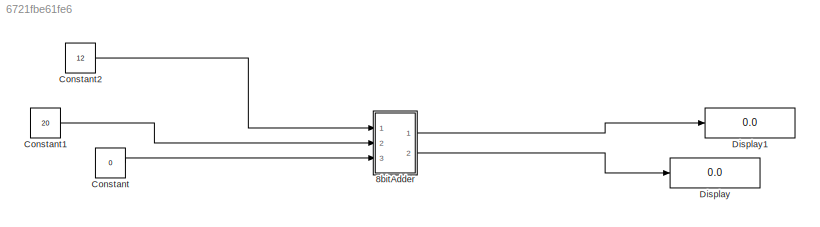
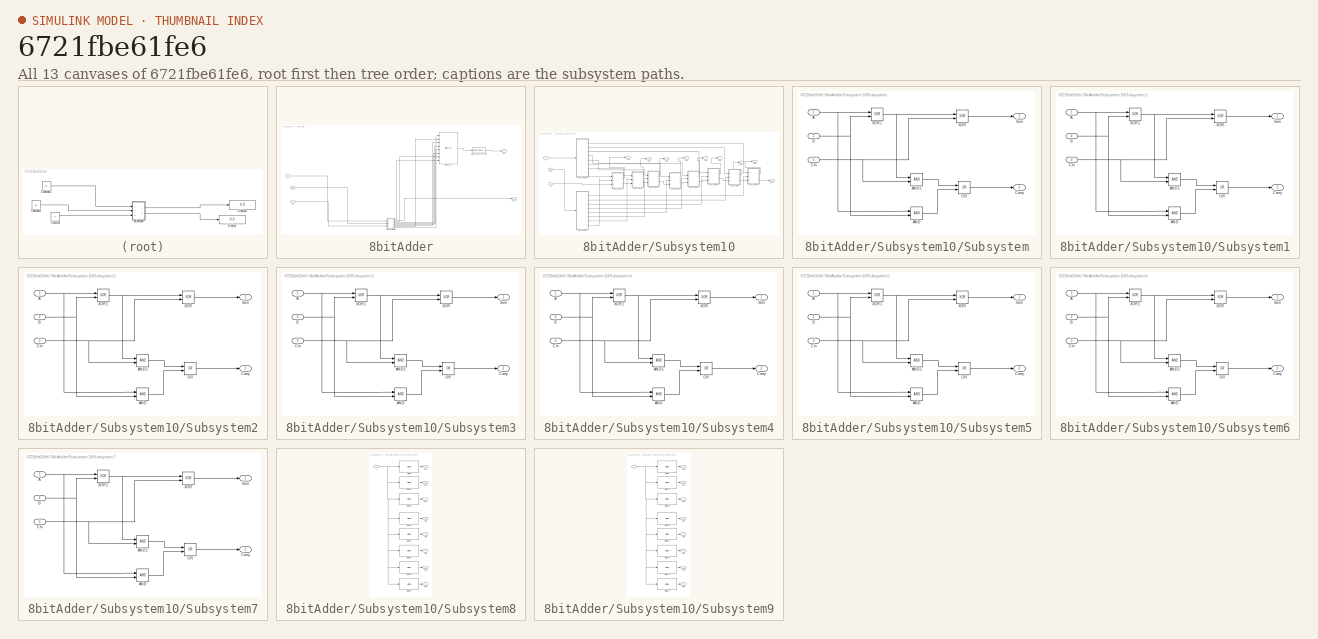
[diagram: thumbnail index - all 13 canvases of the model, root first then tree order]
MODEL slx_6721fbe61fe6
KIND model
CONFIG AbsTol = auto
CONFIG FixedStep = auto
CONFIG MaxStep = auto
CONFIG MinStep = auto
CONFIG RelTol = 1e-3
CONFIG SampleTimeConstraint = Unconstrained
CONFIG Solver = VariableStepAuto
CONFIG SolverMode = Auto
CONFIG SolverName = VariableStepAuto
CONFIG StartTime = 0.0
CONFIG StopTime = 10.0
BLOCK [SubSystem] 8bitAdder
  Ports = [3, 2]
  RequestExecContextInheritance = off
  Variant = off
BLOCK [Inport] 8bitAdder/A
  IconDisplay = Port number
  OutDataTypeStr = int8
BLOCK [Inport] 8bitAdder/B
  IconDisplay = Port number
  Port = 2
BLOCK [Reference] 8bitAdder/Bit Concat  REF=hdlsllib/HDL Operations/Bit Concat
  Ports = [8, 1]
  SourceBlock = hdlsllib/HDL Operations/Bit Concat
  SourceType = Bit Concat
BLOCK [Inport] 8bitAdder/CIn
  IconDisplay = Port number
  Port = 3
BLOCK [Outport] 8bitAdder/Carry
  IconDisplay = Port number
BLOCK [DataTypeConversion] 8bitAdder/Data Type Conversion
  OutDataTypeStr = int8
  RndMeth = Floor
  SaturateOnIntegerOverflow = off
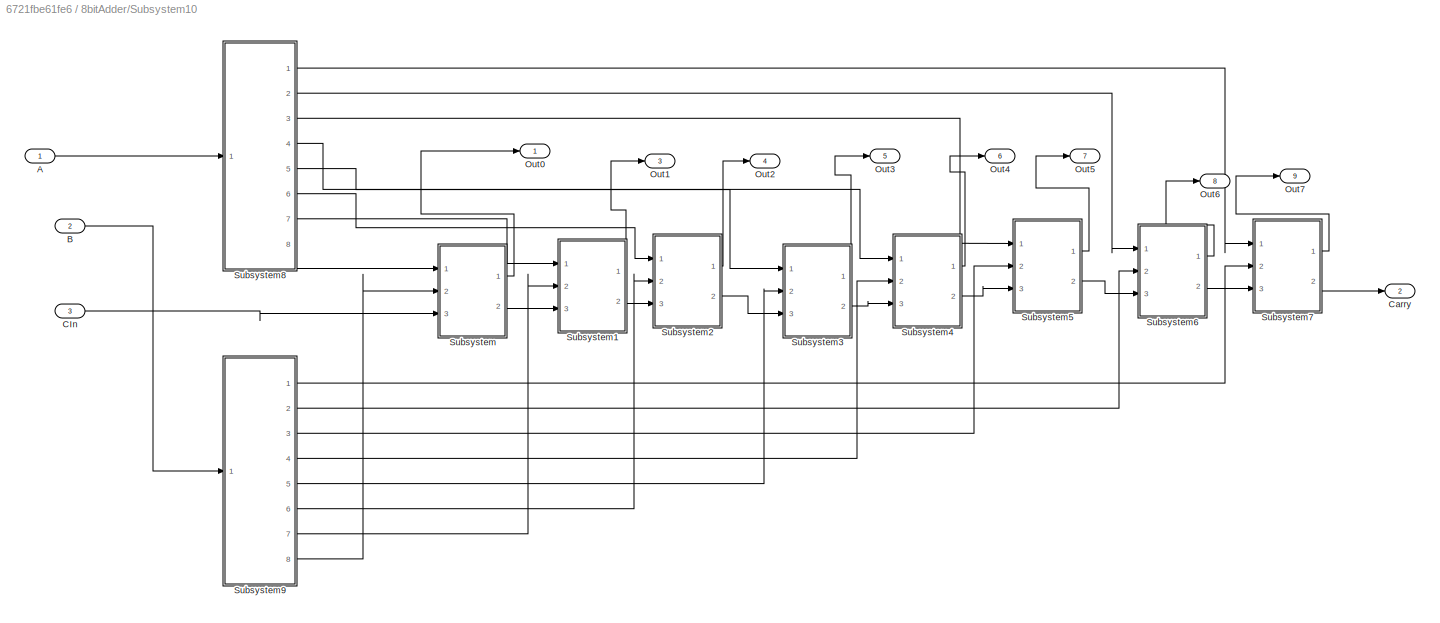
BLOCK [SubSystem] 8bitAdder/Subsystem10
  Ports = [3, 9]
  RequestExecContextInheritance = off
  Variant = off
BLOCK [Inport] 8bitAdder/Subsystem10/A
  IconDisplay = Port number
  OutDataTypeStr = int8
BLOCK [Inport] 8bitAdder/Subsystem10/B
  IconDisplay = Port number
  Port = 2
BLOCK [Inport] 8bitAdder/Subsystem10/CIn
  IconDisplay = Port number
  Port = 3
BLOCK [Outport] 8bitAdder/Subsystem10/Carry
  IconDisplay = Port number
  Port = 2
BLOCK [Outport] 8bitAdder/Subsystem10/Out0
  IconDisplay = Port number
  OutDataTypeStr = boolean
BLOCK [Outport] 8bitAdder/Subsystem10/Out1
  IconDisplay = Port number
  OutDataTypeStr = boolean
  Port = 3
BLOCK [Outport] 8bitAdder/Subsystem10/Out2
  IconDisplay = Port number
  OutDataTypeStr = boolean
  Port = 4
BLOCK [Outport] 8bitAdder/Subsystem10/Out3
  IconDisplay = Port number
  Port = 5
BLOCK [Outport] 8bitAdder/Subsystem10/Out4
  IconDisplay = Port number
  Port = 6
BLOCK [Outport] 8bitAdder/Subsystem10/Out5
  IconDisplay = Port number
  Port = 7
BLOCK [Outport] 8bitAdder/Subsystem10/Out6
  IconDisplay = Port number
  Port = 8
BLOCK [Outport] 8bitAdder/Subsystem10/Out7
  IconDisplay = Port number
  Port = 9
BLOCK [SubSystem] 8bitAdder/Subsystem10/Subsystem
  Ports = [3, 2]
  RequestExecContextInheritance = off
  Variant = off
BLOCK [Inport] 8bitAdder/Subsystem10/Subsystem/A
  IconDisplay = Port number
BLOCK [Logic] 8bitAdder/Subsystem10/Subsystem/AND
  AllPortsSameDT = off
  IconShape = distinctive
  OutDataTypeStr = boolean
  Ports = [2, 1]
BLOCK [Logic] 8bitAdder/Subsystem10/Subsystem/AND1
  AllPortsSameDT = off
  IconShape = distinctive
  OutDataTypeStr = boolean
  Ports = [2, 1]
BLOCK [Inport] 8bitAdder/Subsystem10/Subsystem/B
  IconDisplay = Port number
  Port = 2
BLOCK [Inport] 8bitAdder/Subsystem10/Subsystem/CIn
  IconDisplay = Port number
  Port = 3
BLOCK [Outport] 8bitAdder/Subsystem10/Subsystem/Carry
  IconDisplay = Port number
  Port = 2
BLOCK [Logic] 8bitAdder/Subsystem10/Subsystem/OR 
  AllPortsSameDT = off
  IconShape = distinctive
  Operator = OR
  OutDataTypeStr = boolean
  Ports = [2, 1]
BLOCK [Outport] 8bitAdder/Subsystem10/Subsystem/Sum
  IconDisplay = Port number
BLOCK [Logic] 8bitAdder/Subsystem10/Subsystem/XOR
  AllPortsSameDT = off
  IconShape = distinctive
  Operator = XOR
  OutDataTypeStr = boolean
  Ports = [2, 1]
BLOCK [Logic] 8bitAdder/Subsystem10/Subsystem/XOR1
  AllPortsSameDT = off
  IconShape = distinctive
  Operator = XOR
  OutDataTypeStr = boolean
  Ports = [2, 1]
BLOCK [SubSystem] 8bitAdder/Subsystem10/Subsystem1
  Ports = [3, 2]
  RequestExecContextInheritance = off
  Variant = off
BLOCK [Inport] 8bitAdder/Subsystem10/Subsystem1/A
  IconDisplay = Port number
BLOCK [Logic] 8bitAdder/Subsystem10/Subsystem1/AND
  AllPortsSameDT = off
  IconShape = distinctive
  OutDataTypeStr = boolean
  Ports = [2, 1]
BLOCK [Logic] 8bitAdder/Subsystem10/Subsystem1/AND1
  AllPortsSameDT = off
  IconShape = distinctive
  OutDataTypeStr = boolean
  Ports = [2, 1]
BLOCK [Inport] 8bitAdder/Subsystem10/Subsystem1/B
  IconDisplay = Port number
  Port = 2
BLOCK [Inport] 8bitAdder/Subsystem10/Subsystem1/CIn
  IconDisplay = Port number
  Port = 3
BLOCK [Outport] 8bitAdder/Subsystem10/Subsystem1/Carry
  IconDisplay = Port number
  Port = 2
BLOCK [Logic] 8bitAdder/Subsystem10/Subsystem1/OR 
  AllPortsSameDT = off
  IconShape = distinctive
  Operator = OR
  OutDataTypeStr = boolean
  Ports = [2, 1]
BLOCK [Outport] 8bitAdder/Subsystem10/Subsystem1/Sum
  IconDisplay = Port number
BLOCK [Logic] 8bitAdder/Subsystem10/Subsystem1/XOR
  AllPortsSameDT = off
  IconShape = distinctive
  Operator = XOR
  OutDataTypeStr = boolean
  Ports = [2, 1]
BLOCK [Logic] 8bitAdder/Subsystem10/Subsystem1/XOR1
  AllPortsSameDT = off
  IconShape = distinctive
  Operator = XOR
  OutDataTypeStr = boolean
  Ports = [2, 1]
BLOCK [SubSystem] 8bitAdder/Subsystem10/Subsystem2
  Ports = [3, 2]
  RequestExecContextInheritance = off
  Variant = off
BLOCK [Inport] 8bitAdder/Subsystem10/Subsystem2/A
  IconDisplay = Port number
BLOCK [Logic] 8bitAdder/Subsystem10/Subsystem2/AND
  AllPortsSameDT = off
  IconShape = distinctive
  OutDataTypeStr = boolean
  Ports = [2, 1]
BLOCK [Logic] 8bitAdder/Subsystem10/Subsystem2/AND1
  AllPortsSameDT = off
  IconShape = distinctive
  OutDataTypeStr = boolean
  Ports = [2, 1]
BLOCK [Inport] 8bitAdder/Subsystem10/Subsystem2/B
  IconDisplay = Port number
  Port = 2
BLOCK [Inport] 8bitAdder/Subsystem10/Subsystem2/CIn
  IconDisplay = Port number
  Port = 3
BLOCK [Outport] 8bitAdder/Subsystem10/Subsystem2/Carry
  IconDisplay = Port number
  Port = 2
BLOCK [Logic] 8bitAdder/Subsystem10/Subsystem2/OR 
  AllPortsSameDT = off
  IconShape = distinctive
  Operator = OR
  OutDataTypeStr = boolean
  Ports = [2, 1]
BLOCK [Outport] 8bitAdder/Subsystem10/Subsystem2/Sum
  IconDisplay = Port number
BLOCK [Logic] 8bitAdder/Subsystem10/Subsystem2/XOR
  AllPortsSameDT = off
  IconShape = distinctive
  Operator = XOR
  OutDataTypeStr = boolean
  Ports = [2, 1]
BLOCK [Logic] 8bitAdder/Subsystem10/Subsystem2/XOR1
  AllPortsSameDT = off
  IconShape = distinctive
  Operator = XOR
  OutDataTypeStr = boolean
  Ports = [2, 1]
BLOCK [SubSystem] 8bitAdder/Subsystem10/Subsystem3
  Ports = [3, 2]
  RequestExecContextInheritance = off
  Variant = off
BLOCK [Inport] 8bitAdder/Subsystem10/Subsystem3/A
  IconDisplay = Port number
BLOCK [Logic] 8bitAdder/Subsystem10/Subsystem3/AND
  AllPortsSameDT = off
  IconShape = distinctive
  OutDataTypeStr = boolean
  Ports = [2, 1]
BLOCK [Logic] 8bitAdder/Subsystem10/Subsystem3/AND1
  AllPortsSameDT = off
  IconShape = distinctive
  OutDataTypeStr = boolean
  Ports = [2, 1]
BLOCK [Inport] 8bitAdder/Subsystem10/Subsystem3/B
  IconDisplay = Port number
  Port = 2
BLOCK [Inport] 8bitAdder/Subsystem10/Subsystem3/CIn
  IconDisplay = Port number
  Port = 3
BLOCK [Outport] 8bitAdder/Subsystem10/Subsystem3/Carry
  IconDisplay = Port number
  Port = 2
BLOCK [Logic] 8bitAdder/Subsystem10/Subsystem3/OR 
  AllPortsSameDT = off
  IconShape = distinctive
  Operator = OR
  OutDataTypeStr = boolean
  Ports = [2, 1]
BLOCK [Outport] 8bitAdder/Subsystem10/Subsystem3/Sum
  IconDisplay = Port number
BLOCK [Logic] 8bitAdder/Subsystem10/Subsystem3/XOR
  AllPortsSameDT = off
  IconShape = distinctive
  Operator = XOR
  OutDataTypeStr = boolean
  Ports = [2, 1]
BLOCK [Logic] 8bitAdder/Subsystem10/Subsystem3/XOR1
  AllPortsSameDT = off
  IconShape = distinctive
  Operator = XOR
  OutDataTypeStr = boolean
  Ports = [2, 1]
BLOCK [SubSystem] 8bitAdder/Subsystem10/Subsystem4
  Ports = [3, 2]
  RequestExecContextInheritance = off
  Variant = off
BLOCK [Inport] 8bitAdder/Subsystem10/Subsystem4/A
  IconDisplay = Port number
BLOCK [Logic] 8bitAdder/Subsystem10/Subsystem4/AND
  AllPortsSameDT = off
  IconShape = distinctive
  OutDataTypeStr = boolean
  Ports = [2, 1]
BLOCK [Logic] 8bitAdder/Subsystem10/Subsystem4/AND1
  AllPortsSameDT = off
  IconShape = distinctive
  OutDataTypeStr = boolean
  Ports = [2, 1]
BLOCK [Inport] 8bitAdder/Subsystem10/Subsystem4/B
  IconDisplay = Port number
  Port = 2
BLOCK [Inport] 8bitAdder/Subsystem10/Subsystem4/CIn
  IconDisplay = Port number
  Port = 3
BLOCK [Outport] 8bitAdder/Subsystem10/Subsystem4/Carry
  IconDisplay = Port number
  Port = 2
BLOCK [Logic] 8bitAdder/Subsystem10/Subsystem4/OR 
  AllPortsSameDT = off
  IconShape = distinctive
  Operator = OR
  OutDataTypeStr = boolean
  Ports = [2, 1]
BLOCK [Outport] 8bitAdder/Subsystem10/Subsystem4/Sum
  IconDisplay = Port number
BLOCK [Logic] 8bitAdder/Subsystem10/Subsystem4/XOR
  AllPortsSameDT = off
  IconShape = distinctive
  Operator = XOR
  OutDataTypeStr = boolean
  Ports = [2, 1]
BLOCK [Logic] 8bitAdder/Subsystem10/Subsystem4/XOR1
  AllPortsSameDT = off
  IconShape = distinctive
  Operator = XOR
  OutDataTypeStr = boolean
  Ports = [2, 1]
BLOCK [SubSystem] 8bitAdder/Subsystem10/Subsystem5
  Ports = [3, 2]
  RequestExecContextInheritance = off
  Variant = off
BLOCK [Inport] 8bitAdder/Subsystem10/Subsystem5/A
  IconDisplay = Port number
BLOCK [Logic] 8bitAdder/Subsystem10/Subsystem5/AND
  AllPortsSameDT = off
  IconShape = distinctive
  OutDataTypeStr = boolean
  Ports = [2, 1]
BLOCK [Logic] 8bitAdder/Subsystem10/Subsystem5/AND1
  AllPortsSameDT = off
  IconShape = distinctive
  OutDataTypeStr = boolean
  Ports = [2, 1]
BLOCK [Inport] 8bitAdder/Subsystem10/Subsystem5/B
  IconDisplay = Port number
  Port = 2
BLOCK [Inport] 8bitAdder/Subsystem10/Subsystem5/CIn
  IconDisplay = Port number
  Port = 3
BLOCK [Outport] 8bitAdder/Subsystem10/Subsystem5/Carry
  IconDisplay = Port number
  Port = 2
BLOCK [Logic] 8bitAdder/Subsystem10/Subsystem5/OR 
  AllPortsSameDT = off
  IconShape = distinctive
  Operator = OR
  OutDataTypeStr = boolean
  Ports = [2, 1]
BLOCK [Outport] 8bitAdder/Subsystem10/Subsystem5/Sum
  IconDisplay = Port number
BLOCK [Logic] 8bitAdder/Subsystem10/Subsystem5/XOR
  AllPortsSameDT = off
  IconShape = distinctive
  Operator = XOR
  OutDataTypeStr = boolean
  Ports = [2, 1]
BLOCK [Logic] 8bitAdder/Subsystem10/Subsystem5/XOR1
  AllPortsSameDT = off
  IconShape = distinctive
  Operator = XOR
  OutDataTypeStr = boolean
  Ports = [2, 1]
BLOCK [SubSystem] 8bitAdder/Subsystem10/Subsystem6
  Ports = [3, 2]
  RequestExecContextInheritance = off
  Variant = off
BLOCK [Inport] 8bitAdder/Subsystem10/Subsystem6/A
  IconDisplay = Port number
BLOCK [Logic] 8bitAdder/Subsystem10/Subsystem6/AND
  AllPortsSameDT = off
  IconShape = distinctive
  OutDataTypeStr = boolean
  Ports = [2, 1]
BLOCK [Logic] 8bitAdder/Subsystem10/Subsystem6/AND1
  AllPortsSameDT = off
  IconShape = distinctive
  OutDataTypeStr = boolean
  Ports = [2, 1]
BLOCK [Inport] 8bitAdder/Subsystem10/Subsystem6/B
  IconDisplay = Port number
  Port = 2
BLOCK [Inport] 8bitAdder/Subsystem10/Subsystem6/CIn
  IconDisplay = Port number
  Port = 3
BLOCK [Outport] 8bitAdder/Subsystem10/Subsystem6/Carry
  IconDisplay = Port number
  Port = 2
BLOCK [Logic] 8bitAdder/Subsystem10/Subsystem6/OR 
  AllPortsSameDT = off
  IconShape = distinctive
  Operator = OR
  OutDataTypeStr = boolean
  Ports = [2, 1]
BLOCK [Outport] 8bitAdder/Subsystem10/Subsystem6/Sum
  IconDisplay = Port number
BLOCK [Logic] 8bitAdder/Subsystem10/Subsystem6/XOR
  AllPortsSameDT = off
  IconShape = distinctive
  Operator = XOR
  OutDataTypeStr = boolean
  Ports = [2, 1]
BLOCK [Logic] 8bitAdder/Subsystem10/Subsystem6/XOR1
  AllPortsSameDT = off
  IconShape = distinctive
  Operator = XOR
  OutDataTypeStr = boolean
  Ports = [2, 1]
BLOCK [SubSystem] 8bitAdder/Subsystem10/Subsystem7
  Ports = [3, 2]
  RequestExecContextInheritance = off
  Variant = off
BLOCK [Inport] 8bitAdder/Subsystem10/Subsystem7/A
  IconDisplay = Port number
BLOCK [Logic] 8bitAdder/Subsystem10/Subsystem7/AND
  AllPortsSameDT = off
  IconShape = distinctive
  OutDataTypeStr = boolean
  Ports = [2, 1]
BLOCK [Logic] 8bitAdder/Subsystem10/Subsystem7/AND1
  AllPortsSameDT = off
  IconShape = distinctive
  OutDataTypeStr = boolean
  Ports = [2, 1]
BLOCK [Inport] 8bitAdder/Subsystem10/Subsystem7/B
  IconDisplay = Port number
  Port = 2
BLOCK [Inport] 8bitAdder/Subsystem10/Subsystem7/CIn
  IconDisplay = Port number
  Port = 3
BLOCK [Outport] 8bitAdder/Subsystem10/Subsystem7/Carry
  IconDisplay = Port number
  Port = 2
BLOCK [Logic] 8bitAdder/Subsystem10/Subsystem7/OR 
  AllPortsSameDT = off
  IconShape = distinctive
  Operator = OR
  OutDataTypeStr = boolean
  Ports = [2, 1]
BLOCK [Outport] 8bitAdder/Subsystem10/Subsystem7/Sum
  IconDisplay = Port number
BLOCK [Logic] 8bitAdder/Subsystem10/Subsystem7/XOR
  AllPortsSameDT = off
  IconShape = distinctive
  Operator = XOR
  OutDataTypeStr = boolean
  Ports = [2, 1]
BLOCK [Logic] 8bitAdder/Subsystem10/Subsystem7/XOR1
  AllPortsSameDT = off
  IconShape = distinctive
  Operator = XOR
  OutDataTypeStr = boolean
  Ports = [2, 1]
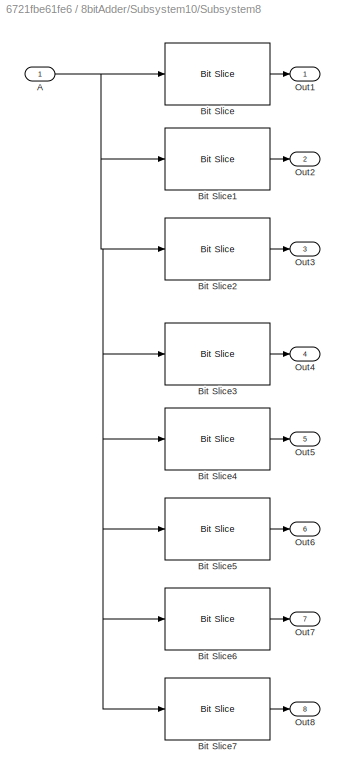
BLOCK [SubSystem] 8bitAdder/Subsystem10/Subsystem8
  Ports = [1, 8]
  RequestExecContextInheritance = off
  Variant = off
BLOCK [Inport] 8bitAdder/Subsystem10/Subsystem8/A
  IconDisplay = Port number
  OutDataTypeStr = int8
BLOCK [Reference] 8bitAdder/Subsystem10/Subsystem8/Bit Slice  REF=hdlsllib/HDL Operations/Bit Slice
  Ports = [1, 1]
  SourceBlock = hdlsllib/HDL Operations/Bit Slice
  SourceType = Bit Slice
BLOCK [Reference] 8bitAdder/Subsystem10/Subsystem8/Bit Slice1  REF=hdlsllib/HDL Operations/Bit Slice
  Ports = [1, 1]
  SourceBlock = hdlsllib/HDL Operations/Bit Slice
  SourceType = Bit Slice
BLOCK [Reference] 8bitAdder/Subsystem10/Subsystem8/Bit Slice2  REF=hdlsllib/HDL Operations/Bit Slice
  Ports = [1, 1]
  SourceBlock = hdlsllib/HDL Operations/Bit Slice
  SourceType = Bit Slice
BLOCK [Reference] 8bitAdder/Subsystem10/Subsystem8/Bit Slice3  REF=hdlsllib/HDL Operations/Bit Slice
  Ports = [1, 1]
  SourceBlock = hdlsllib/HDL Operations/Bit Slice
  SourceType = Bit Slice
BLOCK [Reference] 8bitAdder/Subsystem10/Subsystem8/Bit Slice4  REF=hdlsllib/HDL Operations/Bit Slice
  Ports = [1, 1]
  SourceBlock = hdlsllib/HDL Operations/Bit Slice
  SourceType = Bit Slice
BLOCK [Reference] 8bitAdder/Subsystem10/Subsystem8/Bit Slice5  REF=hdlsllib/HDL Operations/Bit Slice
  Ports = [1, 1]
  SourceBlock = hdlsllib/HDL Operations/Bit Slice
  SourceType = Bit Slice
BLOCK [Reference] 8bitAdder/Subsystem10/Subsystem8/Bit Slice6  REF=hdlsllib/HDL Operations/Bit Slice
  Ports = [1, 1]
  SourceBlock = hdlsllib/HDL Operations/Bit Slice
  SourceType = Bit Slice
BLOCK [Reference] 8bitAdder/Subsystem10/Subsystem8/Bit Slice7  REF=hdlsllib/HDL Operations/Bit Slice
  Ports = [1, 1]
  SourceBlock = hdlsllib/HDL Operations/Bit Slice
  SourceType = Bit Slice
BLOCK [Outport] 8bitAdder/Subsystem10/Subsystem8/Out1
  IconDisplay = Port number
BLOCK [Outport] 8bitAdder/Subsystem10/Subsystem8/Out2
  IconDisplay = Port number
  Port = 2
BLOCK [Outport] 8bitAdder/Subsystem10/Subsystem8/Out3
  IconDisplay = Port number
  Port = 3
BLOCK [Outport] 8bitAdder/Subsystem10/Subsystem8/Out4
  IconDisplay = Port number
  Port = 4
BLOCK [Outport] 8bitAdder/Subsystem10/Subsystem8/Out5
  IconDisplay = Port number
  Port = 5
BLOCK [Outport] 8bitAdder/Subsystem10/Subsystem8/Out6
  IconDisplay = Port number
  Port = 6
BLOCK [Outport] 8bitAdder/Subsystem10/Subsystem8/Out7
  IconDisplay = Port number
  Port = 7
BLOCK [Outport] 8bitAdder/Subsystem10/Subsystem8/Out8
  IconDisplay = Port number
  Port = 8
BLOCK [SubSystem] 8bitAdder/Subsystem10/Subsystem9
  Ports = [1, 8]
  RequestExecContextInheritance = off
  Variant = off
BLOCK [Inport] 8bitAdder/Subsystem10/Subsystem9/A
  IconDisplay = Port number
  OutDataTypeStr = int8
BLOCK [Reference] 8bitAdder/Subsystem10/Subsystem9/Bit Slice  REF=hdlsllib/HDL Operations/Bit Slice
  Ports = [1, 1]
  SourceBlock = hdlsllib/HDL Operations/Bit Slice
  SourceType = Bit Slice
BLOCK [Reference] 8bitAdder/Subsystem10/Subsystem9/Bit Slice1  REF=hdlsllib/HDL Operations/Bit Slice
  Ports = [1, 1]
  SourceBlock = hdlsllib/HDL Operations/Bit Slice
  SourceType = Bit Slice
BLOCK [Reference] 8bitAdder/Subsystem10/Subsystem9/Bit Slice2  REF=hdlsllib/HDL Operations/Bit Slice
  Ports = [1, 1]
  SourceBlock = hdlsllib/HDL Operations/Bit Slice
  SourceType = Bit Slice
BLOCK [Reference] 8bitAdder/Subsystem10/Subsystem9/Bit Slice3  REF=hdlsllib/HDL Operations/Bit Slice
  Ports = [1, 1]
  SourceBlock = hdlsllib/HDL Operations/Bit Slice
  SourceType = Bit Slice
BLOCK [Reference] 8bitAdder/Subsystem10/Subsystem9/Bit Slice4  REF=hdlsllib/HDL Operations/Bit Slice
  Ports = [1, 1]
  SourceBlock = hdlsllib/HDL Operations/Bit Slice
  SourceType = Bit Slice
BLOCK [Reference] 8bitAdder/Subsystem10/Subsystem9/Bit Slice5  REF=hdlsllib/HDL Operations/Bit Slice
  Ports = [1, 1]
  SourceBlock = hdlsllib/HDL Operations/Bit Slice
  SourceType = Bit Slice
BLOCK [Reference] 8bitAdder/Subsystem10/Subsystem9/Bit Slice6  REF=hdlsllib/HDL Operations/Bit Slice
  Ports = [1, 1]
  SourceBlock = hdlsllib/HDL Operations/Bit Slice
  SourceType = Bit Slice
BLOCK [Reference] 8bitAdder/Subsystem10/Subsystem9/Bit Slice7  REF=hdlsllib/HDL Operations/Bit Slice
  Ports = [1, 1]
  SourceBlock = hdlsllib/HDL Operations/Bit Slice
  SourceType = Bit Slice
BLOCK [Outport] 8bitAdder/Subsystem10/Subsystem9/Out1
  IconDisplay = Port number
BLOCK [Outport] 8bitAdder/Subsystem10/Subsystem9/Out2
  IconDisplay = Port number
  Port = 2
BLOCK [Outport] 8bitAdder/Subsystem10/Subsystem9/Out3
  IconDisplay = Port number
  Port = 3
BLOCK [Outport] 8bitAdder/Subsystem10/Subsystem9/Out4
  IconDisplay = Port number
  Port = 4
BLOCK [Outport] 8bitAdder/Subsystem10/Subsystem9/Out5
  IconDisplay = Port number
  Port = 5
BLOCK [Outport] 8bitAdder/Subsystem10/Subsystem9/Out6
  IconDisplay = Port number
  Port = 6
BLOCK [Outport] 8bitAdder/Subsystem10/Subsystem9/Out7
  IconDisplay = Port number
  Port = 7
BLOCK [Outport] 8bitAdder/Subsystem10/Subsystem9/Out8
  IconDisplay = Port number
  Port = 8
BLOCK [Outport] 8bitAdder/Sum
  IconDisplay = Port number
  Port = 2
BLOCK [Constant] Constant
  OutDataTypeStr = boolean
  Value = 0
BLOCK [Constant] Constant1
  OutDataTypeStr = int8
  Value = 20
BLOCK [Constant] Constant2
  OutDataTypeStr = int8
  Value = 12
BLOCK [Display] Display
  Decimation = 1
  Ports = [1]
BLOCK [Display] Display1
  Decimation = 1
  Ports = [1]
LINE 8bitAdder/A:1 -> 8bitAdder/Subsystem10:1
LINE 8bitAdder/B:1 -> 8bitAdder/Subsystem10:2
LINE 8bitAdder/Bit Concat:1 -> 8bitAdder/Data Type Conversion:1
LINE 8bitAdder/CIn:1 -> 8bitAdder/Subsystem10:3
LINE 8bitAdder/Data Type Conversion:1 -> 8bitAdder/Sum:1
LINE 8bitAdder/Subsystem10/A:1 -> 8bitAdder/Subsystem10/Subsystem8:1
LINE 8bitAdder/Subsystem10/B:1 -> 8bitAdder/Subsystem10/Subsystem9:1
LINE 8bitAdder/Subsystem10/CIn:1 -> 8bitAdder/Subsystem10/Subsystem:3
NET 8bitAdder/Subsystem10/Subsystem/A:1 -> 8bitAdder/Subsystem10/Subsystem/AND:1, 8bitAdder/Subsystem10/Subsystem/XOR1:1
LINE 8bitAdder/Subsystem10/Subsystem/AND1:1 -> 8bitAdder/Subsystem10/Subsystem/OR :1
LINE 8bitAdder/Subsystem10/Subsystem/AND:1 -> 8bitAdder/Subsystem10/Subsystem/OR :2
NET 8bitAdder/Subsystem10/Subsystem/B:1 -> 8bitAdder/Subsystem10/Subsystem/AND:2, 8bitAdder/Subsystem10/Subsystem/XOR1:2
NET 8bitAdder/Subsystem10/Subsystem/CIn:1 -> 8bitAdder/Subsystem10/Subsystem/AND1:2, 8bitAdder/Subsystem10/Subsystem/XOR:2
LINE 8bitAdder/Subsystem10/Subsystem/OR :1 -> 8bitAdder/Subsystem10/Subsystem/Carry:1
NET 8bitAdder/Subsystem10/Subsystem/XOR1:1 -> 8bitAdder/Subsystem10/Subsystem/AND1:1, 8bitAdder/Subsystem10/Subsystem/XOR:1
LINE 8bitAdder/Subsystem10/Subsystem/XOR:1 -> 8bitAdder/Subsystem10/Subsystem/Sum:1
NET 8bitAdder/Subsystem10/Subsystem1/A:1 -> 8bitAdder/Subsystem10/Subsystem1/AND:1, 8bitAdder/Subsystem10/Subsystem1/XOR1:1
LINE 8bitAdder/Subsystem10/Subsystem1/AND1:1 -> 8bitAdder/Subsystem10/Subsystem1/OR :1
LINE 8bitAdder/Subsystem10/Subsystem1/AND:1 -> 8bitAdder/Subsystem10/Subsystem1/OR :2
NET 8bitAdder/Subsystem10/Subsystem1/B:1 -> 8bitAdder/Subsystem10/Subsystem1/AND:2, 8bitAdder/Subsystem10/Subsystem1/XOR1:2
NET 8bitAdder/Subsystem10/Subsystem1/CIn:1 -> 8bitAdder/Subsystem10/Subsystem1/AND1:2, 8bitAdder/Subsystem10/Subsystem1/XOR:2
LINE 8bitAdder/Subsystem10/Subsystem1/OR :1 -> 8bitAdder/Subsystem10/Subsystem1/Carry:1
NET 8bitAdder/Subsystem10/Subsystem1/XOR1:1 -> 8bitAdder/Subsystem10/Subsystem1/AND1:1, 8bitAdder/Subsystem10/Subsystem1/XOR:1
LINE 8bitAdder/Subsystem10/Subsystem1/XOR:1 -> 8bitAdder/Subsystem10/Subsystem1/Sum:1
LINE 8bitAdder/Subsystem10/Subsystem1:1 -> 8bitAdder/Subsystem10/Out1:1
LINE 8bitAdder/Subsystem10/Subsystem1:2 -> 8bitAdder/Subsystem10/Subsystem2:3
NET 8bitAdder/Subsystem10/Subsystem2/A:1 -> 8bitAdder/Subsystem10/Subsystem2/AND:1, 8bitAdder/Subsystem10/Subsystem2/XOR1:1
LINE 8bitAdder/Subsystem10/Subsystem2/AND1:1 -> 8bitAdder/Subsystem10/Subsystem2/OR :1
LINE 8bitAdder/Subsystem10/Subsystem2/AND:1 -> 8bitAdder/Subsystem10/Subsystem2/OR :2
NET 8bitAdder/Subsystem10/Subsystem2/B:1 -> 8bitAdder/Subsystem10/Subsystem2/AND:2, 8bitAdder/Subsystem10/Subsystem2/XOR1:2
NET 8bitAdder/Subsystem10/Subsystem2/CIn:1 -> 8bitAdder/Subsystem10/Subsystem2/AND1:2, 8bitAdder/Subsystem10/Subsystem2/XOR:2
LINE 8bitAdder/Subsystem10/Subsystem2/OR :1 -> 8bitAdder/Subsystem10/Subsystem2/Carry:1
NET 8bitAdder/Subsystem10/Subsystem2/XOR1:1 -> 8bitAdder/Subsystem10/Subsystem2/AND1:1, 8bitAdder/Subsystem10/Subsystem2/XOR:1
LINE 8bitAdder/Subsystem10/Subsystem2/XOR:1 -> 8bitAdder/Subsystem10/Subsystem2/Sum:1
LINE 8bitAdder/Subsystem10/Subsystem2:1 -> 8bitAdder/Subsystem10/Out2:1
LINE 8bitAdder/Subsystem10/Subsystem2:2 -> 8bitAdder/Subsystem10/Subsystem3:3
NET 8bitAdder/Subsystem10/Subsystem3/A:1 -> 8bitAdder/Subsystem10/Subsystem3/AND:1, 8bitAdder/Subsystem10/Subsystem3/XOR1:1
LINE 8bitAdder/Subsystem10/Subsystem3/AND1:1 -> 8bitAdder/Subsystem10/Subsystem3/OR :1
LINE 8bitAdder/Subsystem10/Subsystem3/AND:1 -> 8bitAdder/Subsystem10/Subsystem3/OR :2
NET 8bitAdder/Subsystem10/Subsystem3/B:1 -> 8bitAdder/Subsystem10/Subsystem3/AND:2, 8bitAdder/Subsystem10/Subsystem3/XOR1:2
NET 8bitAdder/Subsystem10/Subsystem3/CIn:1 -> 8bitAdder/Subsystem10/Subsystem3/AND1:2, 8bitAdder/Subsystem10/Subsystem3/XOR:2
LINE 8bitAdder/Subsystem10/Subsystem3/OR :1 -> 8bitAdder/Subsystem10/Subsystem3/Carry:1
NET 8bitAdder/Subsystem10/Subsystem3/XOR1:1 -> 8bitAdder/Subsystem10/Subsystem3/AND1:1, 8bitAdder/Subsystem10/Subsystem3/XOR:1
LINE 8bitAdder/Subsystem10/Subsystem3/XOR:1 -> 8bitAdder/Subsystem10/Subsystem3/Sum:1
LINE 8bitAdder/Subsystem10/Subsystem3:1 -> 8bitAdder/Subsystem10/Out3:1
LINE 8bitAdder/Subsystem10/Subsystem3:2 -> 8bitAdder/Subsystem10/Subsystem4:3
NET 8bitAdder/Subsystem10/Subsystem4/A:1 -> 8bitAdder/Subsystem10/Subsystem4/AND:1, 8bitAdder/Subsystem10/Subsystem4/XOR1:1
LINE 8bitAdder/Subsystem10/Subsystem4/AND1:1 -> 8bitAdder/Subsystem10/Subsystem4/OR :1
LINE 8bitAdder/Subsystem10/Subsystem4/AND:1 -> 8bitAdder/Subsystem10/Subsystem4/OR :2
NET 8bitAdder/Subsystem10/Subsystem4/B:1 -> 8bitAdder/Subsystem10/Subsystem4/AND:2, 8bitAdder/Subsystem10/Subsystem4/XOR1:2
NET 8bitAdder/Subsystem10/Subsystem4/CIn:1 -> 8bitAdder/Subsystem10/Subsystem4/AND1:2, 8bitAdder/Subsystem10/Subsystem4/XOR:2
LINE 8bitAdder/Subsystem10/Subsystem4/OR :1 -> 8bitAdder/Subsystem10/Subsystem4/Carry:1
NET 8bitAdder/Subsystem10/Subsystem4/XOR1:1 -> 8bitAdder/Subsystem10/Subsystem4/AND1:1, 8bitAdder/Subsystem10/Subsystem4/XOR:1
LINE 8bitAdder/Subsystem10/Subsystem4/XOR:1 -> 8bitAdder/Subsystem10/Subsystem4/Sum:1
LINE 8bitAdder/Subsystem10/Subsystem4:1 -> 8bitAdder/Subsystem10/Out4:1
LINE 8bitAdder/Subsystem10/Subsystem4:2 -> 8bitAdder/Subsystem10/Subsystem5:3
NET 8bitAdder/Subsystem10/Subsystem5/A:1 -> 8bitAdder/Subsystem10/Subsystem5/AND:1, 8bitAdder/Subsystem10/Subsystem5/XOR1:1
LINE 8bitAdder/Subsystem10/Subsystem5/AND1:1 -> 8bitAdder/Subsystem10/Subsystem5/OR :1
LINE 8bitAdder/Subsystem10/Subsystem5/AND:1 -> 8bitAdder/Subsystem10/Subsystem5/OR :2
NET 8bitAdder/Subsystem10/Subsystem5/B:1 -> 8bitAdder/Subsystem10/Subsystem5/AND:2, 8bitAdder/Subsystem10/Subsystem5/XOR1:2
NET 8bitAdder/Subsystem10/Subsystem5/CIn:1 -> 8bitAdder/Subsystem10/Subsystem5/AND1:2, 8bitAdder/Subsystem10/Subsystem5/XOR:2
LINE 8bitAdder/Subsystem10/Subsystem5/OR :1 -> 8bitAdder/Subsystem10/Subsystem5/Carry:1
NET 8bitAdder/Subsystem10/Subsystem5/XOR1:1 -> 8bitAdder/Subsystem10/Subsystem5/AND1:1, 8bitAdder/Subsystem10/Subsystem5/XOR:1
LINE 8bitAdder/Subsystem10/Subsystem5/XOR:1 -> 8bitAdder/Subsystem10/Subsystem5/Sum:1
LINE 8bitAdder/Subsystem10/Subsystem5:1 -> 8bitAdder/Subsystem10/Out5:1
LINE 8bitAdder/Subsystem10/Subsystem5:2 -> 8bitAdder/Subsystem10/Subsystem6:3
NET 8bitAdder/Subsystem10/Subsystem6/A:1 -> 8bitAdder/Subsystem10/Subsystem6/AND:1, 8bitAdder/Subsystem10/Subsystem6/XOR1:1
LINE 8bitAdder/Subsystem10/Subsystem6/AND1:1 -> 8bitAdder/Subsystem10/Subsystem6/OR :1
LINE 8bitAdder/Subsystem10/Subsystem6/AND:1 -> 8bitAdder/Subsystem10/Subsystem6/OR :2
NET 8bitAdder/Subsystem10/Subsystem6/B:1 -> 8bitAdder/Subsystem10/Subsystem6/AND:2, 8bitAdder/Subsystem10/Subsystem6/XOR1:2
NET 8bitAdder/Subsystem10/Subsystem6/CIn:1 -> 8bitAdder/Subsystem10/Subsystem6/AND1:2, 8bitAdder/Subsystem10/Subsystem6/XOR:2
LINE 8bitAdder/Subsystem10/Subsystem6/OR :1 -> 8bitAdder/Subsystem10/Subsystem6/Carry:1
NET 8bitAdder/Subsystem10/Subsystem6/XOR1:1 -> 8bitAdder/Subsystem10/Subsystem6/AND1:1, 8bitAdder/Subsystem10/Subsystem6/XOR:1
LINE 8bitAdder/Subsystem10/Subsystem6/XOR:1 -> 8bitAdder/Subsystem10/Subsystem6/Sum:1
LINE 8bitAdder/Subsystem10/Subsystem6:1 -> 8bitAdder/Subsystem10/Out6:1
LINE 8bitAdder/Subsystem10/Subsystem6:2 -> 8bitAdder/Subsystem10/Subsystem7:3
NET 8bitAdder/Subsystem10/Subsystem7/A:1 -> 8bitAdder/Subsystem10/Subsystem7/AND:1, 8bitAdder/Subsystem10/Subsystem7/XOR1:1
LINE 8bitAdder/Subsystem10/Subsystem7/AND1:1 -> 8bitAdder/Subsystem10/Subsystem7/OR :1
LINE 8bitAdder/Subsystem10/Subsystem7/AND:1 -> 8bitAdder/Subsystem10/Subsystem7/OR :2
NET 8bitAdder/Subsystem10/Subsystem7/B:1 -> 8bitAdder/Subsystem10/Subsystem7/AND:2, 8bitAdder/Subsystem10/Subsystem7/XOR1:2
NET 8bitAdder/Subsystem10/Subsystem7/CIn:1 -> 8bitAdder/Subsystem10/Subsystem7/AND1:2, 8bitAdder/Subsystem10/Subsystem7/XOR:2
LINE 8bitAdder/Subsystem10/Subsystem7/OR :1 -> 8bitAdder/Subsystem10/Subsystem7/Carry:1
NET 8bitAdder/Subsystem10/Subsystem7/XOR1:1 -> 8bitAdder/Subsystem10/Subsystem7/AND1:1, 8bitAdder/Subsystem10/Subsystem7/XOR:1
LINE 8bitAdder/Subsystem10/Subsystem7/XOR:1 -> 8bitAdder/Subsystem10/Subsystem7/Sum:1
LINE 8bitAdder/Subsystem10/Subsystem7:1 -> 8bitAdder/Subsystem10/Out7:1
LINE 8bitAdder/Subsystem10/Subsystem7:2 -> 8bitAdder/Subsystem10/Carry:1
NET 8bitAdder/Subsystem10/Subsystem8/A:1 -> 8bitAdder/Subsystem10/Subsystem8/Bit Slice1:1, 8bitAdder/Subsystem10/Subsystem8/Bit Slice2:1, 8bitAdder/Subsystem10/Subsystem8/Bit Slice3:1, 8bitAdder/Subsystem10/Subsystem8/Bit Slice4:1, 8bitAdder/Subsystem10/Subsystem8/Bit Slice5:1, 8bitAdder/Subsystem10/Subsystem8/Bit Slice6:1, 8bitAdder/Subsystem10/Subsystem8/Bit Slice7:1, 8bitAdder/Subsystem10/Subsystem8/Bit Slice:1
LINE 8bitAdder/Subsystem10/Subsystem8/Bit Slice1:1 -> 8bitAdder/Subsystem10/Subsystem8/Out2:1
LINE 8bitAdder/Subsystem10/Subsystem8/Bit Slice2:1 -> 8bitAdder/Subsystem10/Subsystem8/Out3:1
LINE 8bitAdder/Subsystem10/Subsystem8/Bit Slice3:1 -> 8bitAdder/Subsystem10/Subsystem8/Out4:1
LINE 8bitAdder/Subsystem10/Subsystem8/Bit Slice4:1 -> 8bitAdder/Subsystem10/Subsystem8/Out5:1
LINE 8bitAdder/Subsystem10/Subsystem8/Bit Slice5:1 -> 8bitAdder/Subsystem10/Subsystem8/Out6:1
LINE 8bitAdder/Subsystem10/Subsystem8/Bit Slice6:1 -> 8bitAdder/Subsystem10/Subsystem8/Out7:1
LINE 8bitAdder/Subsystem10/Subsystem8/Bit Slice7:1 -> 8bitAdder/Subsystem10/Subsystem8/Out8:1
LINE 8bitAdder/Subsystem10/Subsystem8/Bit Slice:1 -> 8bitAdder/Subsystem10/Subsystem8/Out1:1
LINE 8bitAdder/Subsystem10/Subsystem8:1 -> 8bitAdder/Subsystem10/Subsystem7:1
LINE 8bitAdder/Subsystem10/Subsystem8:2 -> 8bitAdder/Subsystem10/Subsystem6:1
LINE 8bitAdder/Subsystem10/Subsystem8:3 -> 8bitAdder/Subsystem10/Subsystem5:1
LINE 8bitAdder/Subsystem10/Subsystem8:4 -> 8bitAdder/Subsystem10/Subsystem4:1
LINE 8bitAdder/Subsystem10/Subsystem8:5 -> 8bitAdder/Subsystem10/Subsystem3:1
LINE 8bitAdder/Subsystem10/Subsystem8:6 -> 8bitAdder/Subsystem10/Subsystem2:1
LINE 8bitAdder/Subsystem10/Subsystem8:7 -> 8bitAdder/Subsystem10/Subsystem1:1
LINE 8bitAdder/Subsystem10/Subsystem8:8 -> 8bitAdder/Subsystem10/Subsystem:1
NET 8bitAdder/Subsystem10/Subsystem9/A:1 -> 8bitAdder/Subsystem10/Subsystem9/Bit Slice1:1, 8bitAdder/Subsystem10/Subsystem9/Bit Slice2:1, 8bitAdder/Subsystem10/Subsystem9/Bit Slice3:1, 8bitAdder/Subsystem10/Subsystem9/Bit Slice4:1, 8bitAdder/Subsystem10/Subsystem9/Bit Slice5:1, 8bitAdder/Subsystem10/Subsystem9/Bit Slice6:1, 8bitAdder/Subsystem10/Subsystem9/Bit Slice7:1, 8bitAdder/Subsystem10/Subsystem9/Bit Slice:1
LINE 8bitAdder/Subsystem10/Subsystem9/Bit Slice1:1 -> 8bitAdder/Subsystem10/Subsystem9/Out2:1
LINE 8bitAdder/Subsystem10/Subsystem9/Bit Slice2:1 -> 8bitAdder/Subsystem10/Subsystem9/Out3:1
LINE 8bitAdder/Subsystem10/Subsystem9/Bit Slice3:1 -> 8bitAdder/Subsystem10/Subsystem9/Out4:1
LINE 8bitAdder/Subsystem10/Subsystem9/Bit Slice4:1 -> 8bitAdder/Subsystem10/Subsystem9/Out5:1
LINE 8bitAdder/Subsystem10/Subsystem9/Bit Slice5:1 -> 8bitAdder/Subsystem10/Subsystem9/Out6:1
LINE 8bitAdder/Subsystem10/Subsystem9/Bit Slice6:1 -> 8bitAdder/Subsystem10/Subsystem9/Out7:1
LINE 8bitAdder/Subsystem10/Subsystem9/Bit Slice7:1 -> 8bitAdder/Subsystem10/Subsystem9/Out8:1
LINE 8bitAdder/Subsystem10/Subsystem9/Bit Slice:1 -> 8bitAdder/Subsystem10/Subsystem9/Out1:1
LINE 8bitAdder/Subsystem10/Subsystem9:1 -> 8bitAdder/Subsystem10/Subsystem7:2
LINE 8bitAdder/Subsystem10/Subsystem9:2 -> 8bitAdder/Subsystem10/Subsystem6:2
LINE 8bitAdder/Subsystem10/Subsystem9:3 -> 8bitAdder/Subsystem10/Subsystem5:2
LINE 8bitAdder/Subsystem10/Subsystem9:4 -> 8bitAdder/Subsystem10/Subsystem4:2
LINE 8bitAdder/Subsystem10/Subsystem9:5 -> 8bitAdder/Subsystem10/Subsystem3:2
LINE 8bitAdder/Subsystem10/Subsystem9:6 -> 8bitAdder/Subsystem10/Subsystem2:2
LINE 8bitAdder/Subsystem10/Subsystem9:7 -> 8bitAdder/Subsystem10/Subsystem1:2
LINE 8bitAdder/Subsystem10/Subsystem9:8 -> 8bitAdder/Subsystem10/Subsystem:2
LINE 8bitAdder/Subsystem10/Subsystem:1 -> 8bitAdder/Subsystem10/Out0:1
LINE 8bitAdder/Subsystem10/Subsystem:2 -> 8bitAdder/Subsystem10/Subsystem1:3
LINE 8bitAdder/Subsystem10:1 -> 8bitAdder/Bit Concat:8
LINE 8bitAdder/Subsystem10:2 -> 8bitAdder/Carry:1
LINE 8bitAdder/Subsystem10:3 -> 8bitAdder/Bit Concat:7
LINE 8bitAdder/Subsystem10:4 -> 8bitAdder/Bit Concat:6
LINE 8bitAdder/Subsystem10:5 -> 8bitAdder/Bit Concat:5
LINE 8bitAdder/Subsystem10:6 -> 8bitAdder/Bit Concat:4
LINE 8bitAdder/Subsystem10:7 -> 8bitAdder/Bit Concat:3
LINE 8bitAdder/Subsystem10:8 -> 8bitAdder/Bit Concat:2
LINE 8bitAdder/Subsystem10:9 -> 8bitAdder/Bit Concat:1
LINE 8bitAdder:1 -> Display1:1
LINE 8bitAdder:2 -> Display:1
LINE Constant1:1 -> 8bitAdder:2
LINE Constant2:1 -> 8bitAdder:1
LINE Constant:1 -> 8bitAdder:3
note: NET lines group one-source signal fan-out (src -> all destinations, sorted); 1:1 wires keep LINE
